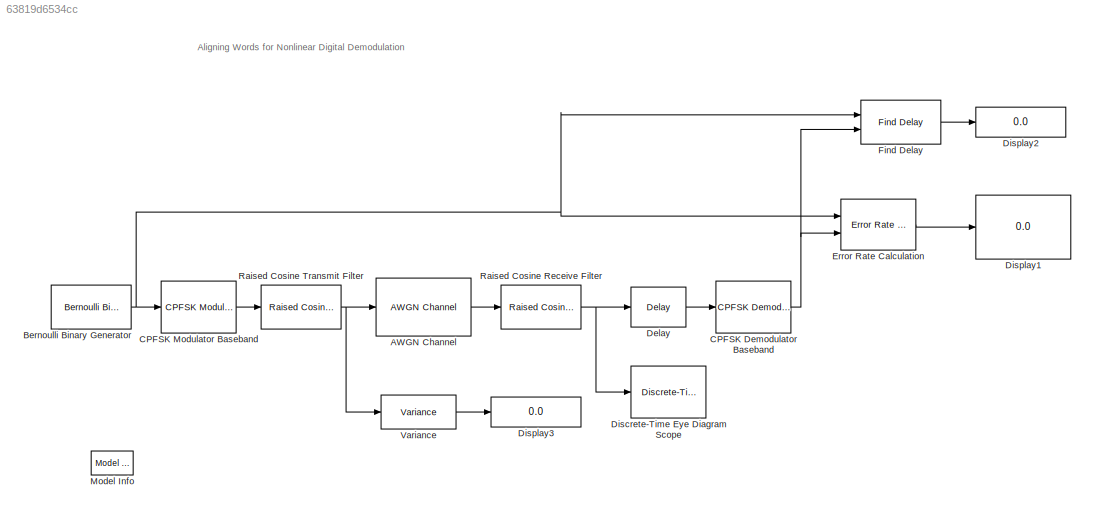
MODEL slx_63819d6534cc
KIND model
BLOCK [Reference] AWGN Channel  REF=commchan3/AWGN
Channel
  EbNodB = 5
  EsNodB = 10
  InputProcessing = Columns as channels (frame based)
  Ports = [1, 1]
  Ps = 0.1226
  SNRdB = 10
  SourceBlock = commchan3/AWGN\nChannel
  SourceType = AWGN Channel
  Tsym = 1
  UserDataPersistent = on
  bitsPerSym = 1
  noiseMode = Signal to noise ratio  (Eb/No)
  seed = 67
  variance = 1
BLOCK [Reference] Bernoulli Binary Generator  REF=commrandsrc2/Bernoulli Binary
Generator
  P = 0.5
  Ports = [0, 1]
  SourceBlock = commrandsrc2/Bernoulli Binary\nGenerator
  SourceType = Bernoulli Binary Generator
  Ts = 1
  frameBased = off
  orient = off
  outDataType = double
  sampPerFrame = 1
  seed = 61
BLOCK [Reference] CPFSK Demodulator Baseband  REF=commdigbbndcpm2/CPFSK Demodulator
Baseband
  Mnum = 2
  Ports = [1, 1]
  RateOptions = Allow multirate processing
  SourceBlock = commdigbbndcpm2/CPFSK Demodulator\nBaseband
  SourceType = CPFSK Demodulator Baseband
  UserDataPersistent = on
  mappingType = Binary
  modIdx = .5
  outDtype = double
  outputType = Bit
  phaseOffset = 0
  samplesPerSymbol = 8
  traceBack = 16
BLOCK [Reference] CPFSK Modulator Baseband  REF=commdigbbndcpm2/CPFSK Modulator
Baseband
  Mnum = 2
  Ports = [1, 1]
  RateOptions = Allow multirate processing
  SourceBlock = commdigbbndcpm2/CPFSK Modulator\nBaseband
  SourceType = CPFSK Modulator Baseband
  UserDataPersistent = on
  inputType = Bit
  mappingType = Binary
  modIdx = .5
  outDataType = double
  phaseOffset = 0
  samplesPerSymbol = 8
BLOCK [Reference] Delay  REF=dspsigops/Delay
  InputProcessing = Elements as channels (sample based)
  Ports = [1, 1]
  SourceBlock = dspsigops/Delay
  SourceType = Delay
  UserDataPersistent = on
  delay = 8
  dif_ic_for_ch = off
  dif_ic_for_dly = off
  dly_unit = Samples
  ic = 0
  ic_detail = off
  reset_popup = None
BLOCK [Reference] Discrete-Time Eye Diagram Scope  REF=commsink2/Discrete-Time
Eye Diagram
Scope
  AxisGrid = on
  FigPos = get(0,'defaultfigureposition');
  FrameNumber = off
  LineColors = b
  LineStyles = -
  Ports = [1]
  SourceBlock = commsink2/Discrete-Time\nEye Diagram\nScope
  SourceType = Discrete-Time Eye Diagram Scope
  Tag = EyeDiagram
  block_type_ = eye
  dispDiagram = In-phase and Quadrature
  dupPoints = on
  fading = on
  figTitle = Eye Diagram
  inphaseLabel = In-phase Amplitude
  numLinesMax = 8
  numNewFrames = 10
  numTraces = 40
  offsetEye = 0
  openScopeAtSimStart = off
  quadratureLabel = Quadrature Amplitude
  render = on
  sampPerSymb = 8
  symbPerTrace = 1
  yMax = 4.11454633354114
  yMin = -4.38100164960216
BLOCK [Display] Display1
  Decimation = 1
  Ports = [1]
BLOCK [Display] Display2
  Decimation = 1
  Ports = [1]
BLOCK [Display] Display3
  Decimation = 1
  Ports = [1]
BLOCK [Reference] Error Rate Calculation  REF=commsink2/Error Rate
Calculation
  N = 17+2
  PMode = Port
  Ports = [2, 1]
  RsMode2 = off
  SourceBlock = commsink2/Error Rate\nCalculation
  SourceType = Error Rate Calculation
  WsName = ErrorVec
  cp_mode = Entire frame
  maxBits = 1e6
  numErr = 100
  st_delay = 0
  stop = off
  subframe = []
BLOCK [Reference] Find Delay  REF=commutil2/Find Delay
  Ports = [2, 1]
  SourceBlock = commutil2/Find Delay
  SourceType = Find Delay
  chgSigOP = off
  corrLength = 200
  numConstDelay = 3
  stopUpdate = off
BLOCK [Reference] Model Info  REF=simulink/Model-Wide
Utilities/Model Info
  BlockCM = None
  DisplayStringWithTags = Info
  Frame = on
  HorizontalTextAlignment = Center
  InitialBlockCM = None
  LeftAlignmentValue = 0.5
  MaskDisplayString = Info
  Ports = []
  SourceBlock = simulink/Model-Wide\nUtilities/Model Info
  SourceBlockDiagram = doc_nonlinear_digital_demod
  SourceType = CMBlock
  TagMaxNumber = 20
BLOCK [Reference] Raised Cosine Receive Filter  REF=commfilt2/Raised Cosine
Receive Filter
  D = 4
  InputProcessing = Elements as channels (sample based)
  LockScale = off
  N = 8
  Ports = [1, 1]
  R = 0.2
  SourceBlock = commfilt2/Raised Cosine\nReceive Filter
  SourceType = Raised Cosine Receive Filter
  UserDataPersistent = on
  accumFracLength = 30
  accumMode = Same as product output
  accumWordLength = 32
  checkCoeff = on
  checkGain = Normalized
  coeffFracLength = 15
  coeffMode = Same word length as input
  coeffWordLength = 16
  currentFiltSpan = 2*(4)
  downFactor = 8
  downOffset = 0
  filtSpan = 2*(4)
  filtType = Square root
  filterGain = rcfiltgaincompat(gcbh)
  framing = Maintain input frame size
  launchFVT = off
  outputFracLength = 15
  outputMode = Same as accumulator
  outputWordLength = 16
  overflowMode = off
  prodOutputFracLength = 30
  prodOutputMode = Same as input
  prodOutputWordLength = 32
  rateMode = Downsampling
  roundingMode = Floor
  sampMode = Mute
  saveAsFlag = 0
  variableName = rcRxFilt1
BLOCK [Reference] Raised Cosine Transmit Filter  REF=commfilt2/Raised Cosine
Transmit Filter
  D = 4
  InputProcessing = Elements as channels (sample based)
  LockScale = off
  N = 8
  Ports = [1, 1]
  R = 0.2
  SourceBlock = commfilt2/Raised Cosine\nTransmit Filter
  SourceType = Raised Cosine Transmit Filter
  UserDataPersistent = on
  accumFracLength = 30
  accumMode = Inherit via internal rule
  accumWordLength = 32
  checkCoeff = off
  checkGain = Normalized
  coeffFracLength = 15
  coeffMode = Same word length as input
  coeffWordLength = 16
  currentFiltSpan = 2*(4)
  filtSpan = 2*(4)
  filtType = Square root
  filterGain = rcfiltgaincompat(gcbh)
  framing = Maintain input frame size
  launchFVT = off
  outputFracLength = 15
  outputMode = Same as accumulator
  outputWordLength = 16
  overflowMode = off
  prodOutputFracLength = 30
  prodOutputMode = Inherit via internal rule
  prodOutputWordLength = 32
  roundingMode = Floor
  sampMode = Mute
  saveAsFlag = 0
  variableName = rcTxFilt
BLOCK [Reference] Variance  REF=dspstat3/Variance
  InputProcessing = Elements as channels (sample based)
  LockScale = off
  Ports = [1, 1]
  SourceBlock = dspstat3/Variance
  SourceType = Variance
  UserDataPersistent = on
  accumFracLength = 30
  accumMode = Same as input
  accumWordLength = 32
  additionalParams = off
  allowOverrides = on
  dimension = 1
  directionMode = Each column
  memoryFracLength = 30
  memoryMode = Same as input-squared product
  memoryWordLength = 32
  outputFracLength = 30
  outputMode = Same as accumulator
  outputWordLength = 32
  overflowMode = off
  prodOutputFracLength = 30
  prodOutputMode = Same as input
  prodOutputWordLength = 32
  reset_popup = None
  roiEnable = off
  roiFlag = off
  roiOutput = Individual statistics for each ROI
  roiPortion = Entire ROI
  roiType = Rectangles
  roundingMode = Floor
  run = on
  treatSBRowAsCol = on
ANNOTATION (root): Aligning Words for Nonlinear Digital Demodulation
LINE AWGN Channel:1 -> Raised Cosine Receive Filter:1
NET Bernoulli Binary Generator:1 -> CPFSK Modulator Baseband:1, Error Rate Calculation:1, Find Delay:1
NET CPFSK Demodulator Baseband:1 -> Error Rate Calculation:2, Find Delay:2
LINE CPFSK Modulator Baseband:1 -> Raised Cosine Transmit Filter:1
LINE Delay:1 -> CPFSK Demodulator Baseband:1
LINE Error Rate Calculation:1 -> Display1:1
LINE Find Delay:1 -> Display2:1
NET Raised Cosine Receive Filter:1 -> Delay:1, Discrete-Time Eye Diagram Scope:1
NET Raised Cosine Transmit Filter:1 -> AWGN Channel:1, Variance:1
LINE Variance:1 -> Display3:1
note: NET lines group one-source signal fan-out (src -> all destinations, sorted); 1:1 wires keep LINE
